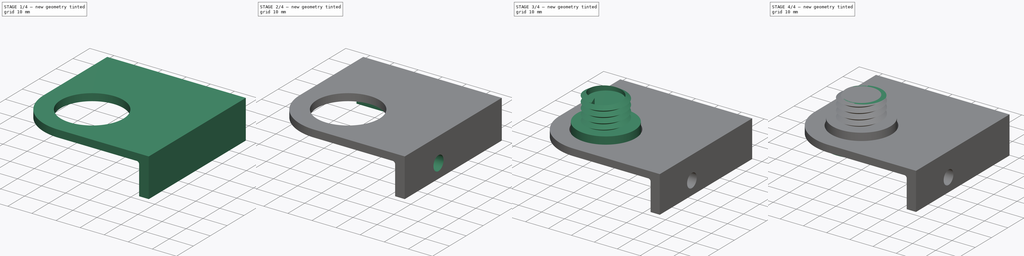
[diagram: build sequence overview — one tinted view per stage of 4, left to right]
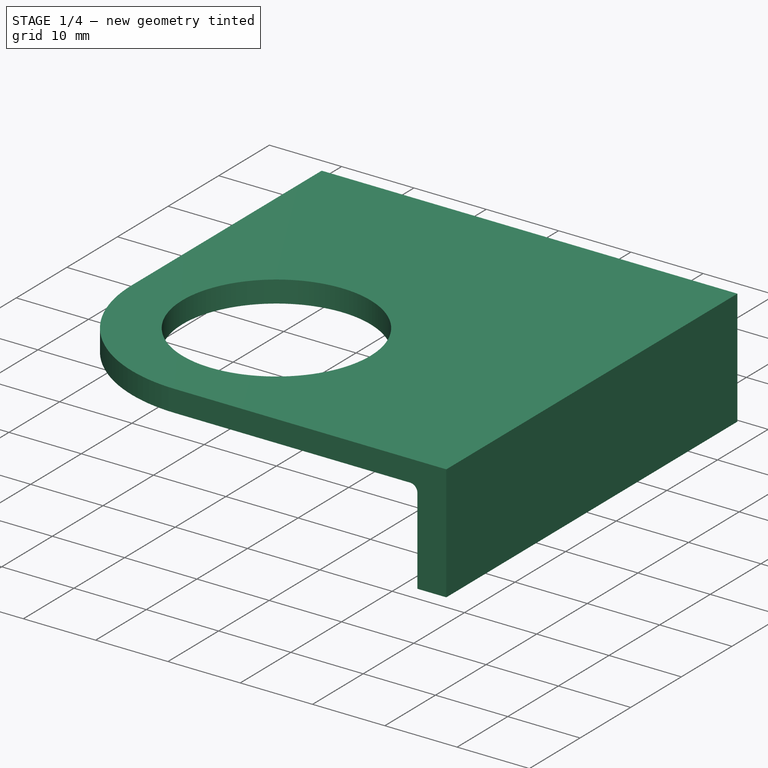
[diagram: stage 1 of 4 — iso view after this stage's code; geometry added in this stage tinted green]
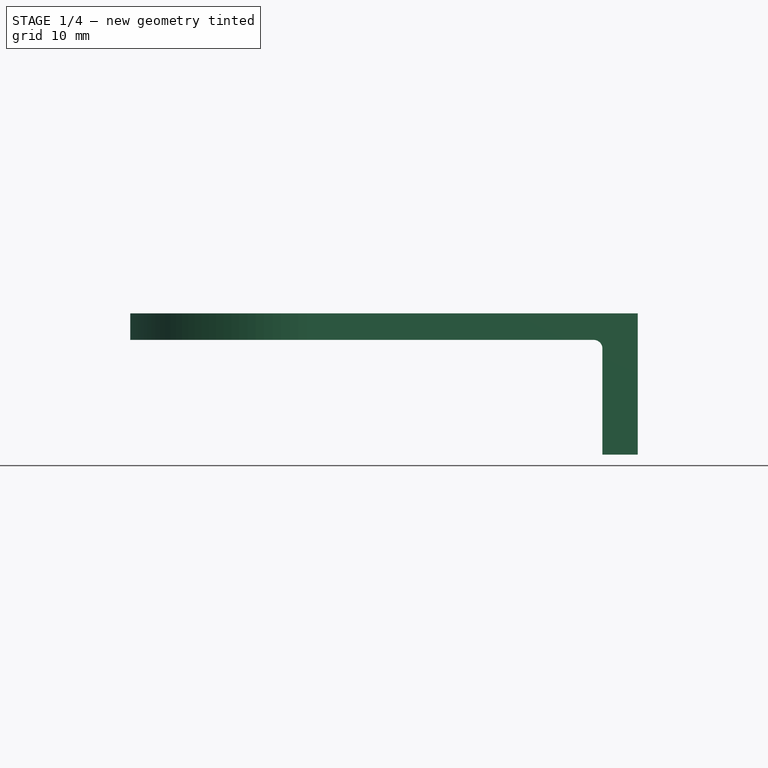
[diagram: stage 1 of 4 — front view after this stage's code; geometry added in this stage tinted green]
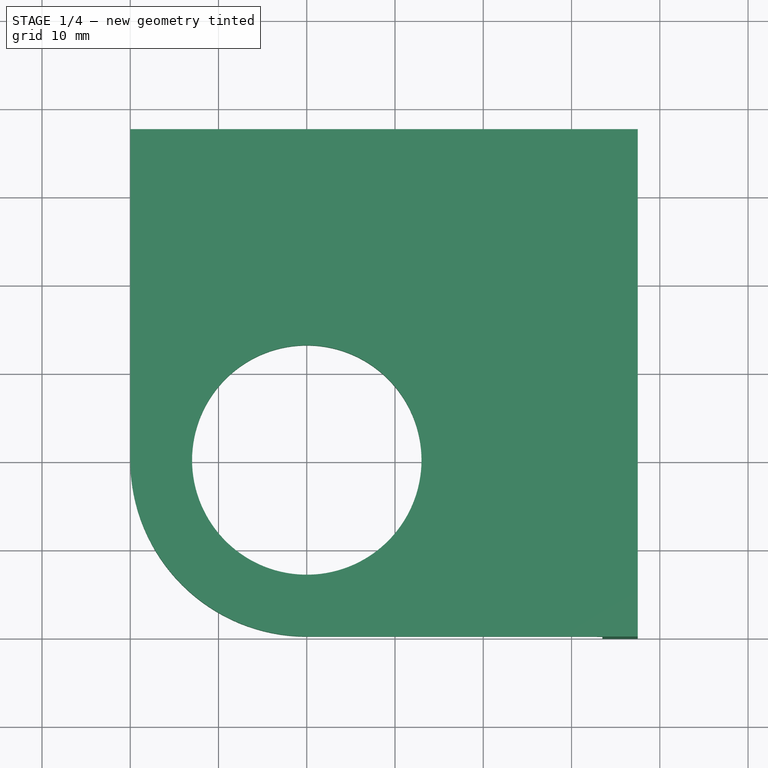
[diagram: stage 1 of 4 — top view after this stage's code; geometry added in this stage tinted green]
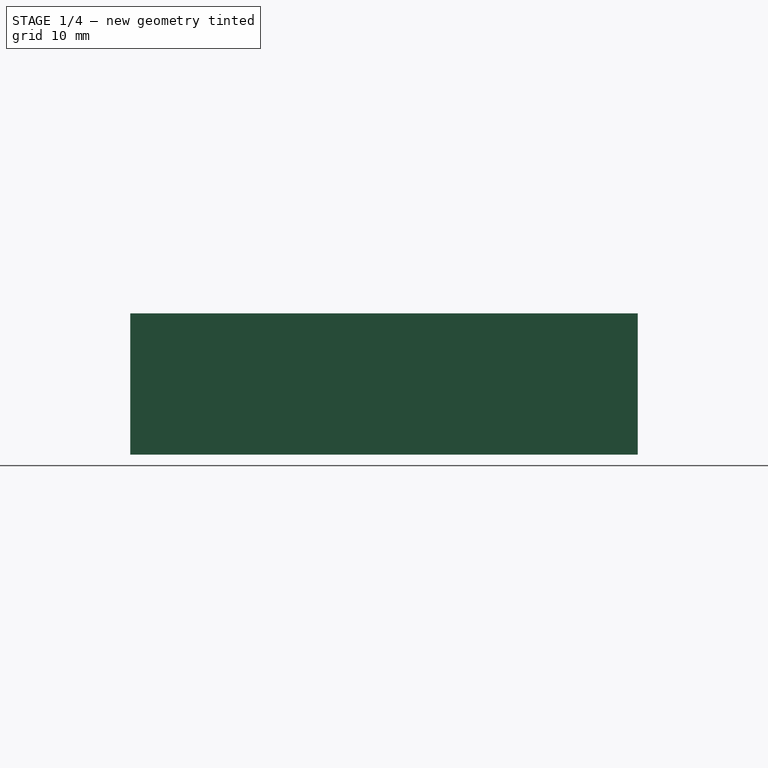
[diagram: stage 1 of 4 — right view after this stage's code; geometry added in this stage tinted green]
FCSTD DOCUMENT  (FreeCAD 0.20R29177 +426 (Git))
Label: tempHighTowerTableWallSecureConnector
License: All rights reserved
LicenseURL: http://en.wikipedia.org/wiki/All_rights_reserved
objects: Sketcher::SketchObject×11, PartDesign::Pad×6, PartDesign::Pocket×3, PartDesign::Body×2, Spreadsheet::Sheet×1, PartDesign::AdditiveHelix×1
note: 33 computed .brp shape members not serialized (recipe doc carries the construction recipe); baked Part::Feature solids carry a one-line shape summary decoded from their .brp

FEATURE [PartDesign::Body] Body
  Group = -> [Sketch,Pad,Sketch001,Pad001,Sketch002,Sketch004,AdditiveHelix001,Sketch005,Pocket001,Sketch006,Pad002]
  Origin = -> Origin
  Tip = -> Pad002
FEATURE [Sketcher::SketchObject] Sketch007
  AttachmentOffset = pos=(0,0,3) rot=(0,0,1;0rad)
  FullyConstrained = true
  MapMode = 5
  Placement = pos=(0,0,3) rot=(0,0,1;0rad)
  Support = -> [XY_Plane001]
  expr: .AttachmentOffset.Base.z = Spreadsheet.topThickness
  expr: Constraints[0] = Spreadsheet.tableConnR + 0.5
  expr: Constraints[19] = Spreadsheet.totalWallConnWidth
  expr: Constraints[3] = Spreadsheet.tableConnRToSideDist
  expr: Constraints[9] = Spreadsheet.totalWallConnWidth
  sketch-geometry (7):
    g0: Circle CenterX=0 CenterY=0 CenterZ=0 NormalX=0 NormalY=0 NormalZ=1 AngleXU=0 Radius=13
    g1: ArcOfCircle CenterX=0 CenterY=0 CenterZ=0 NormalX=0 NormalY=0 NormalZ=1 AngleXU=0 Radius=20 StartAngle=3.14159 EndAngle=4.71239
    g2: LineSegment StartX=0 StartY=37.5 StartZ=0 EndX=37.5 EndY=37.5 EndZ=0
    g3: LineSegment StartX=37.5 StartY=37.5 StartZ=0 EndX=37.5 EndY=-20 EndZ=0
    g4: LineSegment StartX=37.5 StartY=-20 StartZ=0 EndX=-7.1e-15 EndY=-20 EndZ=0
    g5: LineSegment StartX=0 StartY=37.5 StartZ=0 EndX=-20 EndY=37.5 EndZ=0
    g6: LineSegment StartX=-20 StartY=37.5 StartZ=0 EndX=-20 EndY=0 EndZ=0
  constraints (20):
    c: Radius(g0) = 13
    c: Coincident(g0,g-1)
    c: Coincident(g1,g0)
    c: Radius(g1) = 20
    c: Coincident(g2,g3)
    c: Coincident(g3,g4)
    c: Horizontal(g2)
    c: Vertical(g3)
    c: PointOnObject(g2,g-2)
    c: DistanceX(g2,g2) = 37.5
    c: Coincident(g5,g2)
    c: Horizontal(g5)
    c: Coincident(g6,g5)
    c: Vertical(g6)
    c: Horizontal(g4)
    c: Coincident(g4,g1)
    c: Coincident(g1,g6)
    c: PointOnObject(g1,g-2)
    c: PointOnObject(g1,g-1)
    c: DistanceY(g0,g2) = 37.5
FEATURE [PartDesign::Pad] Pad003
  Direction = (0,0,1)
  Length = 3
  Length2 = 10
  Profile = -> Sketch007
  ReferenceAxis = -> Sketch007 [N_Axis]
  Type = 0
  expr: Length = Spreadsheet.tableConnDeepth - Spreadsheet.topThickness
FEATURE [Sketcher::SketchObject] Sketch008  label="Sketch008SideWall"
  AttachmentOffset = pos=(0,0,20) rot=(0,0,1;0rad)
  FullyConstrained = true
  MapMode = 5
  Placement = pos=(0,-20,-4.4e-15) rot=(1,0,0;1.5708rad)
  Support = -> [XZ_Plane001]
  expr: .AttachmentOffset.Base.z = Spreadsheet.tableConnRToSideDist
  expr: Constraints[10] = Spreadsheet.topThickness
  expr: Constraints[14] = Spreadsheet.wallConnectBottomHeight
  expr: Constraints[8] = Spreadsheet.wallConnectThickness
  expr: Constraints[9] = Spreadsheet.totalWallConnWidth
  sketch-geometry (5):
    g0: LineSegment StartX=32.5 StartY=3 StartZ=0 EndX=37.5 EndY=3 EndZ=0
    g1: LineSegment StartX=37.5 StartY=3 StartZ=0 EndX=37.5 EndY=-10 EndZ=0
    g2: LineSegment StartX=37.5 StartY=-10 StartZ=0 EndX=33.5 EndY=-10 EndZ=0
    g3: LineSegment StartX=33.5 StartY=-10 StartZ=0 EndX=33.5 EndY=2 EndZ=0
    g4: ArcOfCircle CenterX=32.5 CenterY=2 CenterZ=0 NormalX=0 NormalY=0 NormalZ=1 AngleXU=0 Radius=1 StartAngle=0 EndAngle=1.5708
  constraints (15):
    c: Horizontal(g0)
    c: Coincident(g1,g0)
    c: Vertical(g1)
    c: Coincident(g2,g1)
    c: Coincident(g3,g2)
    c: Vertical(g3)
    c: Horizontal(g2)
    c: DistanceX(g0,g0) = 5
    c: DistanceX(g2,g2) = 4
    c: DistanceX(g-1,g0) = 37.5
    c: DistanceY(g-1,g0) = 3
    c: Coincident(g4,g0)
    c: Radius(g4) = 1
    c: Tangent(g4,g3) = -1.5708
    c: DistanceY(g2,g-1) = 10
FEATURE [PartDesign::Pad] Pad004  label="Pad004SideWall"
  BaseFeature = -> Pad003
  Direction = (0,-1,-2e-16)
  Length = 57.5
  Length2 = 10
  Profile = -> Sketch008
  ReferenceAxis = -> Sketch008 [N_Axis]
  Reversed = true
  Type = 0
  expr: Length = Spreadsheet.totalWallConnWidthWithR
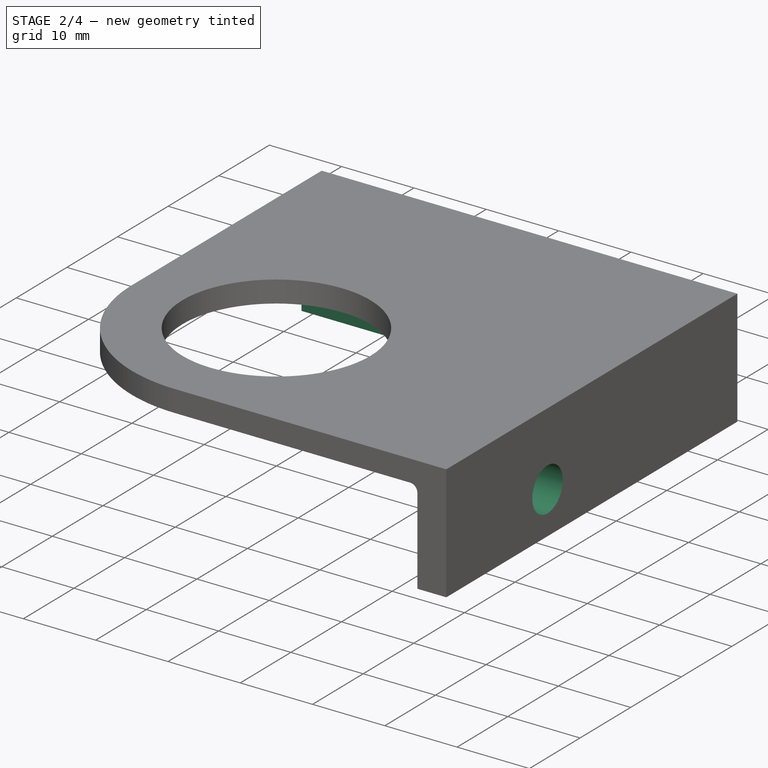
[diagram: stage 2 of 4 — iso view after this stage's code; geometry added in this stage tinted green]
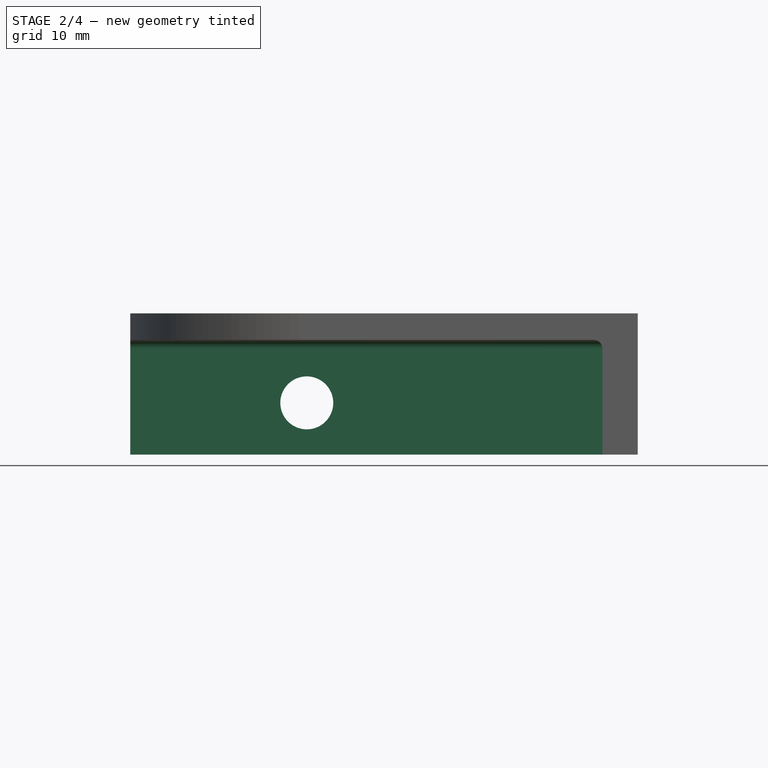
[diagram: stage 2 of 4 — front view after this stage's code; geometry added in this stage tinted green]
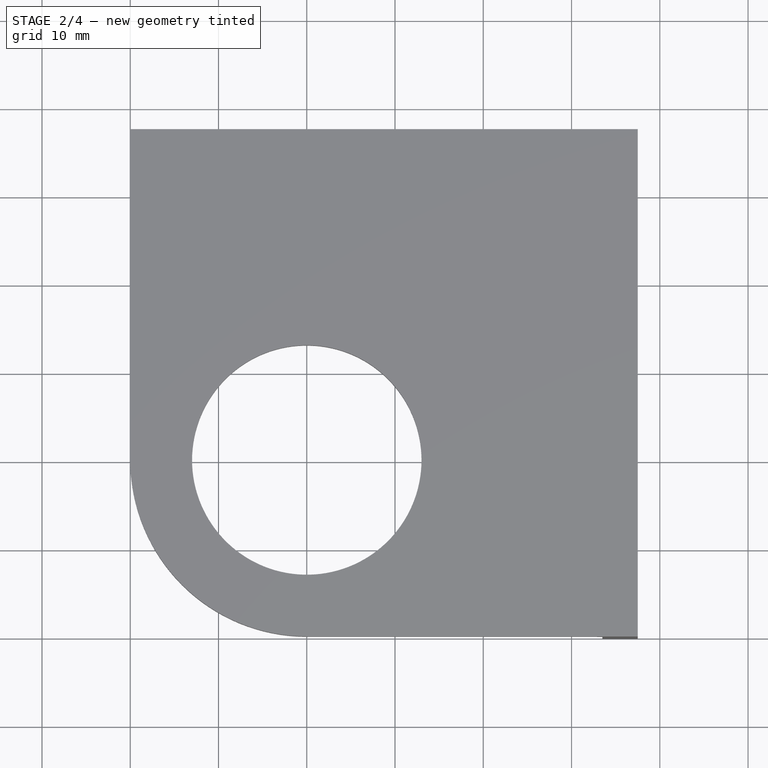
[diagram: stage 2 of 4 — top view after this stage's code; geometry added in this stage tinted green]
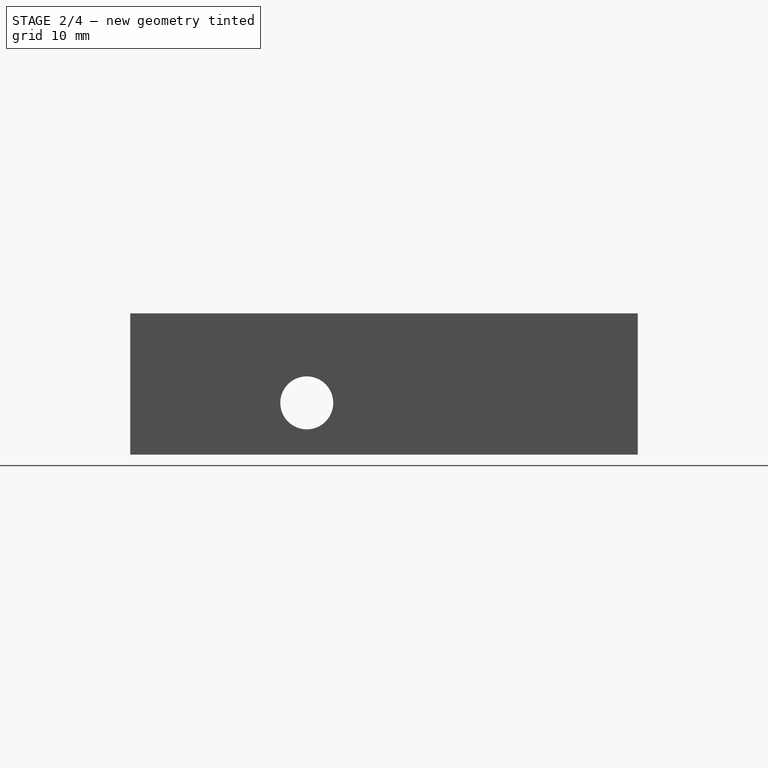
[diagram: stage 2 of 4 — right view after this stage's code; geometry added in this stage tinted green]
FEATURE [Sketcher::SketchObject] Sketch009  label="Sketch009SideWall"
  AttachmentOffset = pos=(0,0,-20) rot=(0,0,1;0rad)
  FullyConstrained = true
  MapMode = 5
  Placement = pos=(-20,4.4e-15,-4.4e-15) rot=(0.57735,0.57735,0.57735;2.0944rad)
  Support = -> [YZ_Plane001]
  expr: .AttachmentOffset.Base.z = -Spreadsheet.tableConnRToSideDist
  expr: Constraints[10] = Spreadsheet.topThickness
  expr: Constraints[14] = Spreadsheet.wallConnectBottomHeight
  expr: Constraints[8] = Spreadsheet.wallConnectThickness
  expr: Constraints[9] = Spreadsheet.totalWallConnWidth
  sketch-geometry (5):
    g0: LineSegment StartX=32.5 StartY=3 StartZ=0 EndX=37.5 EndY=3 EndZ=0
    g1: LineSegment StartX=37.5 StartY=3 StartZ=0 EndX=37.5 EndY=-10 EndZ=0
    g2: LineSegment StartX=37.5 StartY=-10 StartZ=0 EndX=33.5 EndY=-10 EndZ=0
    g3: LineSegment StartX=33.5 StartY=-10 StartZ=0 EndX=33.5 EndY=2 EndZ=0
    g4: ArcOfCircle CenterX=32.5 CenterY=2 CenterZ=0 NormalX=0 NormalY=0 NormalZ=1 AngleXU=0 Radius=1 StartAngle=0 EndAngle=1.5708
  constraints (15):
    c: Horizontal(g0)
    c: Coincident(g1,g0)
    c: Vertical(g1)
    c: Coincident(g2,g1)
    c: Coincident(g3,g2)
    c: Vertical(g3)
    c: Horizontal(g2)
    c: DistanceX(g0,g0) = 5
    c: DistanceX(g2,g2) = 4
    c: DistanceX(g-1,g0) = 37.5
    c: DistanceY(g-1,g0) = 3
    c: Coincident(g4,g0)
    c: Radius(g4) = 1
    c: Tangent(g4,g3) = -1.5708
    c: DistanceY(g2,g-1) = 10
FEATURE [PartDesign::Pad] Pad005
  BaseFeature = -> Pad004
  Direction = (1,-2e-16,3e-16)
  Length = 57.5
  Length2 = 10
  Profile = -> Sketch009
  ReferenceAxis = -> Sketch009 [N_Axis]
  Type = 0
  expr: Length = Spreadsheet.totalWallConnWidthWithR
FEATURE [Sketcher::SketchObject] Sketch010
  FullyConstrained = false
  MapMode = 5
  Placement = pos=(0,0,0) rot=(0.57735,0.57735,0.57735;2.0944rad)
  Support = -> [YZ_Plane001]
  expr: Constraints[1] = Spreadsheet.woodScrewR
  sketch-geometry (1):
    g0: Circle CenterX=0 CenterY=-4.13761 CenterZ=0 NormalX=0 NormalY=0 NormalZ=1 AngleXU=0 Radius=3
  constraints (2):
    c: PointOnObject(g0,g-2)
    c: Radius(g0) = 3
FEATURE [PartDesign::Pocket] Pocket002
  BaseFeature = -> Pad005
  Direction = (-1,2e-16,-3e-16)
  Length = 5
  Length2 = 5
  Profile = -> Sketch010
  ReferenceAxis = -> Sketch010 [N_Axis]
  Reversed = true
  Type = 1
FEATURE [Sketcher::SketchObject] Sketch011
  FullyConstrained = false
  MapMode = 5
  Placement = pos=(0,0,0) rot=(1,0,0;1.5708rad)
  Support = -> [XZ_Plane001]
  expr: Constraints[1] = Spreadsheet.woodScrewR
  sketch-geometry (1):
    g0: Circle CenterX=0 CenterY=-4.13761 CenterZ=0 NormalX=0 NormalY=0 NormalZ=1 AngleXU=0 Radius=3
  constraints (2):
    c: PointOnObject(g0,g-2)
    c: Radius(g0) = 3
FEATURE [PartDesign::Pocket] Pocket003
  BaseFeature = -> Pocket002
  Direction = (0,1,2e-16)
  Length = 5
  Length2 = 5
  Profile = -> Sketch011
  ReferenceAxis = -> Sketch011 [N_Axis]
  Type = 1
FEATURE [PartDesign::Body] Body001
  Group = -> [Sketch007,Pad003,Sketch008,Pad004,Sketch009,Pad005,Sketch010,Pocket002,Sketch011,Pocket003]
  Origin = -> Origin001
  Placement = pos=(4,0,0) rot=(0,0,1;0rad)
  Tip = -> Pocket003
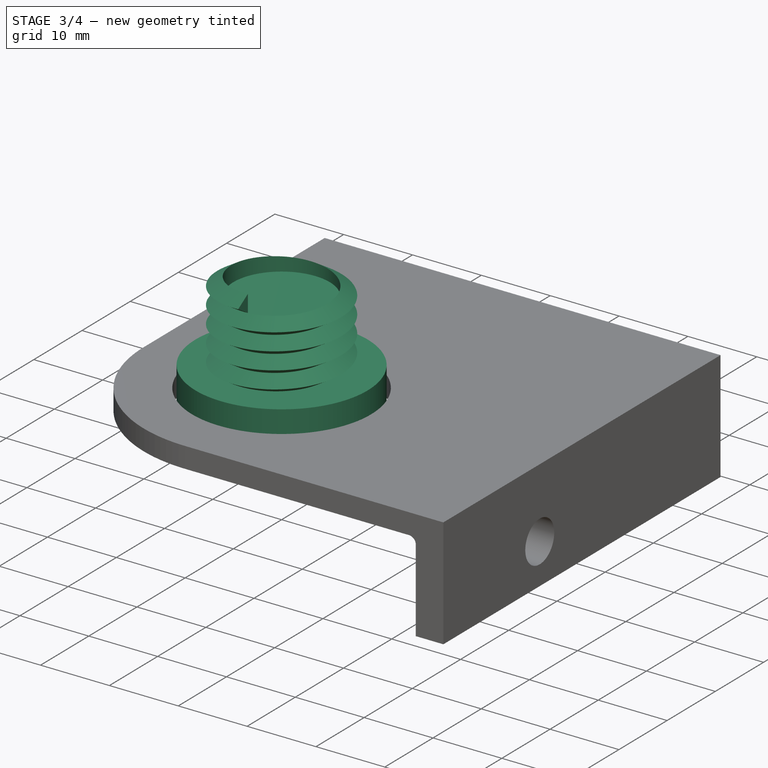
[diagram: stage 3 of 4 — iso view after this stage's code; geometry added in this stage tinted green]
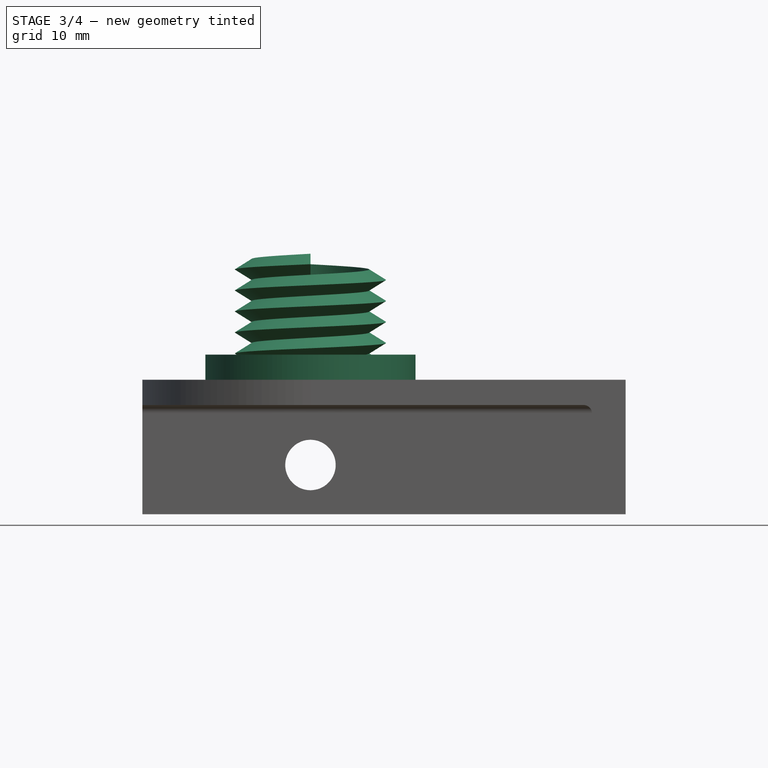
[diagram: stage 3 of 4 — front view after this stage's code; geometry added in this stage tinted green]
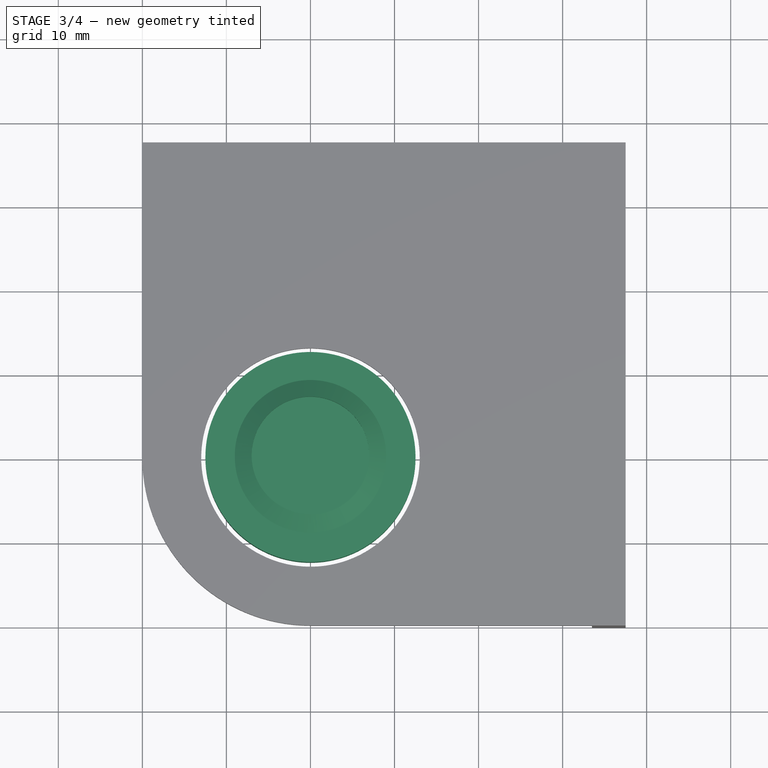
[diagram: stage 3 of 4 — top view after this stage's code; geometry added in this stage tinted green]
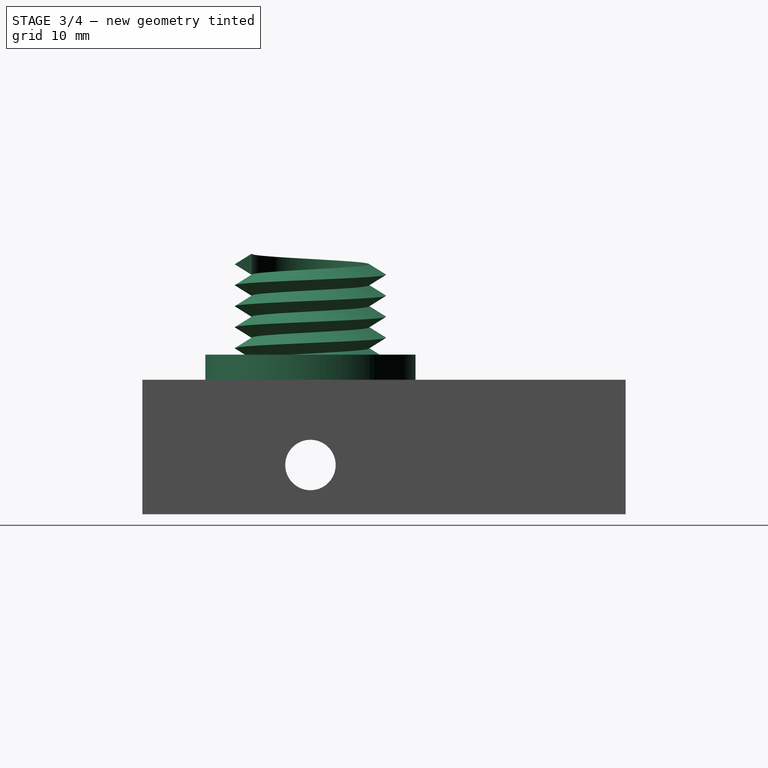
[diagram: stage 3 of 4 — right view after this stage's code; geometry added in this stage tinted green]
FEATURE [Spreadsheet::Sheet] Spreadsheet
  cells = A2=innerScrewR; B2(innerScrewR)=7; A3=tableConnR; B3(tableConnR)=12.5; A4=tableConnDeepth; B4(tableConnDeepth)==3 + wallConnectorPlateTopThickness; A5=screwDeepth; B5(screwDeepth)==tableConnDeepth + 9; A6=wallConnectorPlateTopThickness; B6(wallConnectorPlateTopThickness)=3; A7=topR; B7(topR)=15; A8=topThickness; B8(topThickness)=3; A11=screwToothBaseW; B11(screwToothBaseW)=2.5; A12=screwToothActualBaseW; B12(screwToothActualBaseW)==screwToothBaseW - screwToothShrink; A13=screwToothShrink; B13(screwToothShrink)=0.01; A17=tableConnRToSideDist; B17(tableConnRToSideDist)=20; A18=centerToSideDist; B18(centerToSideDist)==tableConnRToSideDist + tableConnR; A21=holderOutsideR; B21(holderOutsideR)==tableConnR + 4; A26=wallConnectThickness; B26(wallConnectThickness)=4; A27=wallConnectBottomHeight; B27(wallConnectBottomHeight)=10; A28=totalWallConnWidth; B28(totalWallConnWidth)==tableConnR + tableConnRToSideDist + wallConnectThickness + 1; A29=totalWallConnWidthWithR; B29(totalWallConnWidthWithR)==totalWallConnWidth + tableConnRToSideDist; A31=woodScrewR; B31(woodScrewR)=3
FEATURE [Sketcher::SketchObject] Sketch
  AttachmentOffset = pos=(0,0,3) rot=(0,0,1;0rad)
  FullyConstrained = true
  MapMode = 5
  Placement = pos=(0,0,3) rot=(0,0,1;0rad)
  Support = -> [XY_Plane]
  expr: .AttachmentOffset.Base.z = Spreadsheet.topThickness
  expr: Constraints[1] = Spreadsheet.tableConnR
  sketch-geometry (1):
    g0: Circle CenterX=0 CenterY=0 CenterZ=0 NormalX=0 NormalY=0 NormalZ=1 AngleXU=0 Radius=12.5
  constraints (2):
    c: Coincident(g0,g-1)
    c: Radius(g0) = 12.5
FEATURE [PartDesign::Pad] Pad
  Direction = (0,0,1)
  Length = 6
  Length2 = 10
  Profile = -> Sketch
  ReferenceAxis = -> Sketch [N_Axis]
  Type = 0
  expr: Length = Spreadsheet.tableConnDeepth
FEATURE [Sketcher::SketchObject] Sketch001  label="Sketch001CenterScrew"
  AttachmentOffset = pos=(0,0,3) rot=(0,0,1;0rad)
  FullyConstrained = true
  MapMode = 5
  Placement = pos=(0,0,3) rot=(0,0,1;0rad)
  Support = -> [XY_Plane]
  expr: .AttachmentOffset.Base.z = Spreadsheet.topThickness
  expr: Constraints[1] = Spreadsheet.innerScrewR
  sketch-geometry (1):
    g0: Circle CenterX=0 CenterY=0 CenterZ=0 NormalX=0 NormalY=0 NormalZ=1 AngleXU=0 Radius=7
  constraints (2):
    c: Coincident(g0,g-1)
    c: Radius(g0) = 7
FEATURE [PartDesign::Pad] Pad001
  BaseFeature = -> Pad
  Direction = (0,0,1)
  Length = 15
  Length2 = 10
  Profile = -> Sketch001
  ReferenceAxis = -> Sketch001 [N_Axis]
  Type = 0
  expr: Length = Spreadsheet.screwDeepth
FEATURE [Sketcher::SketchObject] Sketch002  label="Sketch002TimeSaveDebugCut"
  FullyConstrained = false
  MapMode = 5
  Support = -> [XY_Plane]
  sketch-geometry (9):
    g0: LineSegment StartX=-9.58047 StartY=5.6087 StartZ=0 EndX=-7.58912 EndY=5.6087 EndZ=0
    g1: LineSegment StartX=-7.58912 StartY=5.6087 StartZ=0 EndX=-7.58912 EndY=-5.46904 EndZ=0
    g2: LineSegment StartX=-7.58912 StartY=-5.46904 StartZ=0 EndX=-9.58047 EndY=-5.46904 EndZ=0
    g3: LineSegment StartX=-9.58047 StartY=-5.46904 StartZ=0 EndX=-9.58047 EndY=5.6087 EndZ=0
    g4: LineSegment StartX=7.61015 StartY=5.53512 StartZ=0 EndX=9.59473 EndY=5.53512 EndZ=0
    g5: LineSegment StartX=9.59473 StartY=5.53512 StartZ=0 EndX=9.59473 EndY=-4.89399 EndZ=0
    g6: LineSegment StartX=9.59473 StartY=-4.89399 StartZ=0 EndX=7.61015 EndY=-4.89399 EndZ=0
    g7: LineSegment StartX=7.61015 StartY=-4.89399 StartZ=0 EndX=7.61015 EndY=5.53512 EndZ=0
    g8: Circle CenterX=0 CenterY=0 CenterZ=0 NormalX=0 NormalY=0 NormalZ=1 AngleXU=0 Radius=5.12394
  constraints (17):
    c: Coincident(g0,g1)
    c: Coincident(g1,g2)
    c: Coincident(g2,g3)
    c: Coincident(g3,g0)
    c: Horizontal(g0)
    c: Horizontal(g2)
    c: Vertical(g1)
    c: Vertical(g3)
    c: Coincident(g4,g5)
    c: Coincident(g5,g6)
    c: Coincident(g6,g7)
    c: Coincident(g7,g4)
    c: Horizontal(g4)
    c: Horizontal(g6)
    c: Vertical(g5)
    c: Vertical(g7)
    c: Coincident(g8,g-1)
FEATURE [Sketcher::SketchObject] Sketch004
  FullyConstrained = true
  MapMode = 5
  Placement = pos=(0,0,0) rot=(0.57735,0.57735,0.57735;2.0944rad)
  Support = -> [YZ_Plane]
  expr: Constraints[3] = Spreadsheet.screwToothActualBaseW
  expr: Constraints[4] = Spreadsheet.screwToothActualBaseW / 2
  expr: Constraints[5] = 2
  expr: Constraints[7] = Spreadsheet.innerScrewR
  expr: Constraints[8] = Spreadsheet.tableConnDeepth
  sketch-geometry (3):
    g0: LineSegment StartX=-7 StartY=3.51 StartZ=0 EndX=-9 EndY=4.755 EndZ=0
    g1: LineSegment StartX=-9 StartY=4.755 StartZ=0 EndX=-7 EndY=6 EndZ=0
    g2: LineSegment StartX=-7 StartY=6 StartZ=0 EndX=-7 EndY=3.51 EndZ=0
  constraints (9):
    c: Coincident(g1,g0)
    c: Coincident(g2,g1)
    c: Coincident(g2,g0)
    c: DistanceY(g2,g2) = 2.49
    c: DistanceY(g0,g0) = 1.245
    c: DistanceX(g0,g0) = 2
    c: Vertical(g2)
    c: DistanceX(g0,g-1) = 7
    c: DistanceY(g-1,g1) = 6
FEATURE [PartDesign::AdditiveHelix] AdditiveHelix001
  Angle = 0
  Axis = (-2e-16,3e-16,1)
  Base = (0,0,0)
  BaseFeature = -> Pad001
  Growth = 0
  HasBeenEdited = true
  Height = 15
  LeftHanded = false
  Mode = 0
  Outside = false
  Pitch = 2.5
  Profile = -> Sketch004
  ReferenceAxis = -> Sketch004 [V_Axis]
  Turns = 6
  expr: Height = Spreadsheet.screwDeepth
  expr: Pitch = Spreadsheet.screwToothBaseW
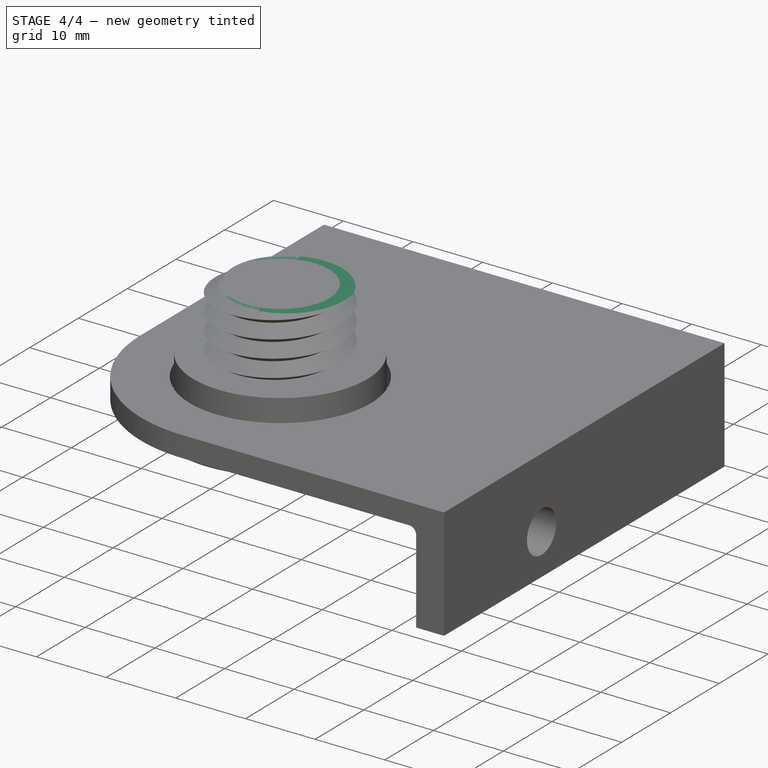
[diagram: stage 4 of 4 — iso view after this stage's code; geometry added in this stage tinted green]
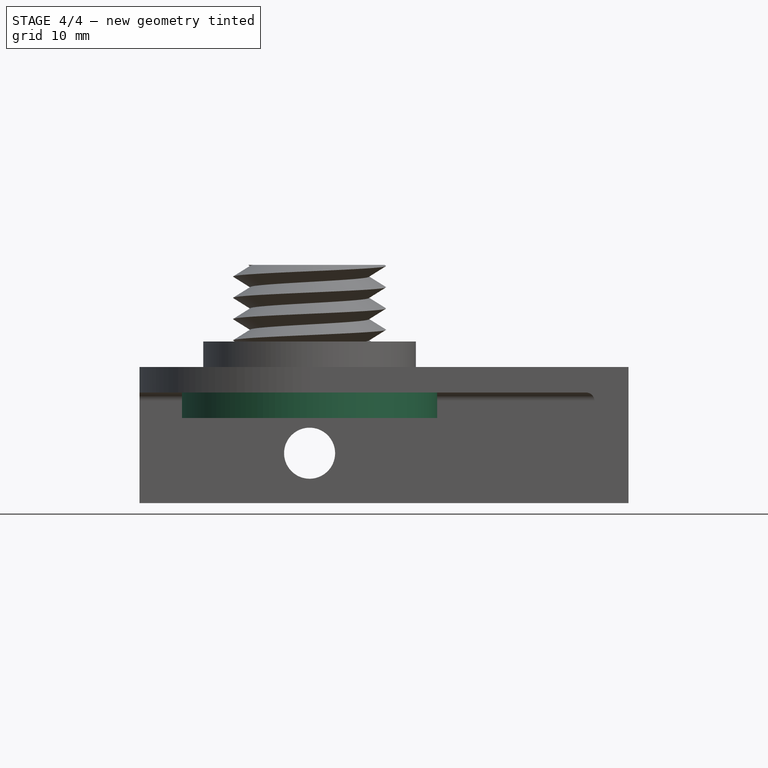
[diagram: stage 4 of 4 — front view after this stage's code; geometry added in this stage tinted green]
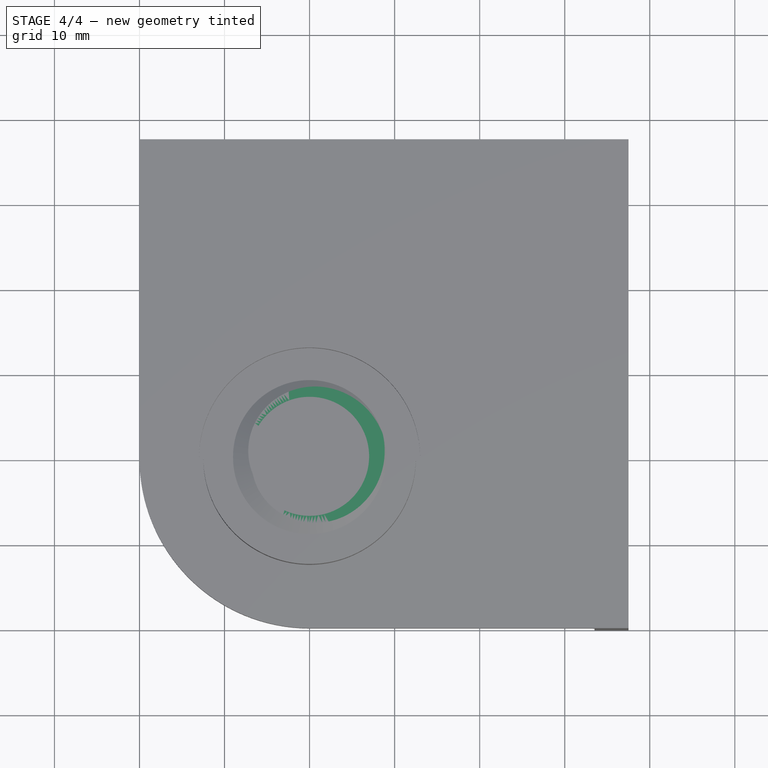
[diagram: stage 4 of 4 — top view after this stage's code; geometry added in this stage tinted green]
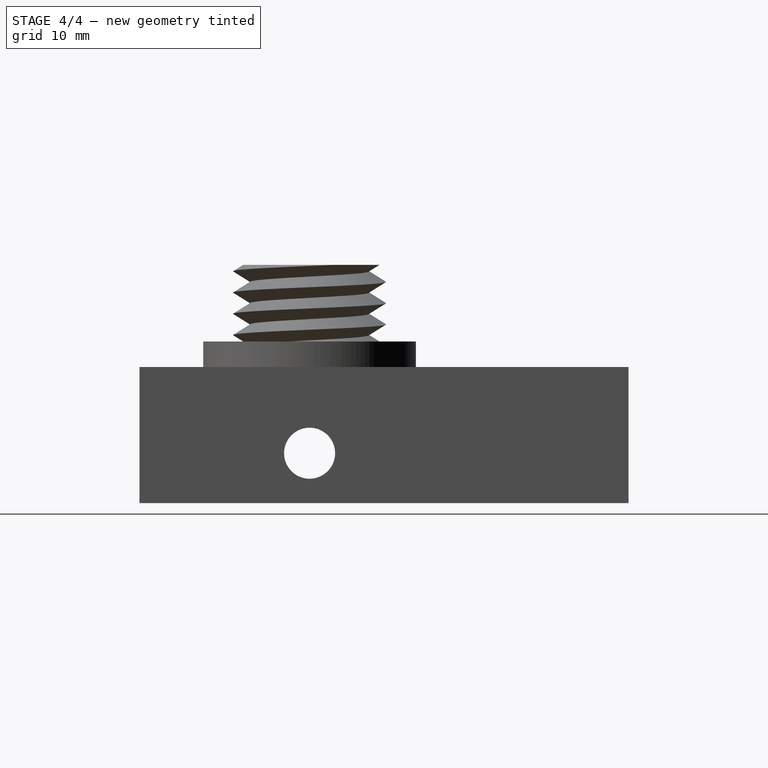
[diagram: stage 4 of 4 — right view after this stage's code; geometry added in this stage tinted green]
FEATURE [Sketcher::SketchObject] Sketch005
  AttachmentOffset = pos=(0,0,10) rot=(0,0,1;0rad)
  FullyConstrained = false
  MapMode = 5
  Placement = pos=(0,-10,-2.2e-15) rot=(1,0,0;1.5708rad)
  Support = -> [XZ_Plane]
  expr: Constraints[8] = Spreadsheet.screwDeepth + Spreadsheet.topThickness
  sketch-geometry (4):
    g0: LineSegment StartX=-20.8182 StartY=24.5816 StartZ=0 EndX=22.9001 EndY=24.5816 EndZ=0
    g1: LineSegment StartX=22.9001 StartY=24.5816 StartZ=0 EndX=22.9001 EndY=18 EndZ=0
    g2: LineSegment StartX=22.9001 StartY=18 StartZ=0 EndX=-20.8182 EndY=18 EndZ=0
    g3: LineSegment StartX=-20.8182 StartY=18 StartZ=0 EndX=-20.8182 EndY=24.5816 EndZ=0
  constraints (9):
    c: Coincident(g0,g1)
    c: Coincident(g1,g2)
    c: Coincident(g2,g3)
    c: Coincident(g3,g0)
    c: Horizontal(g0)
    c: Horizontal(g2)
    c: Vertical(g1)
    c: Vertical(g3)
    c: DistanceY(g-1,g1) = 18
FEATURE [PartDesign::Pocket] Pocket001  label="Pocket001TopCut"
  BaseFeature = -> AdditiveHelix001
  Direction = (0,1,2e-16)
  Length = 20
  Length2 = 5
  Profile = -> Sketch005
  ReferenceAxis = -> Sketch005 [N_Axis]
  Type = 0
FEATURE [Sketcher::SketchObject] Sketch006  label="Sketch006TopPlate"
  FullyConstrained = true
  MapMode = 5
  Support = -> [XY_Plane]
  expr: Constraints[1] = Spreadsheet.topR
  sketch-geometry (1):
    g0: Circle CenterX=0 CenterY=0 CenterZ=0 NormalX=0 NormalY=0 NormalZ=1 AngleXU=0 Radius=15
  constraints (2):
    c: Coincident(g0,g-1)
    c: Radius(g0) = 15
FEATURE [PartDesign::Pad] Pad002  label="Pad002Top"
  BaseFeature = -> Pocket001
  Direction = (0,0,1)
  Length = 3
  Length2 = 10
  Profile = -> Sketch006
  ReferenceAxis = -> Sketch006 [N_Axis]
  Type = 0
  expr: Length = Spreadsheet.topThickness
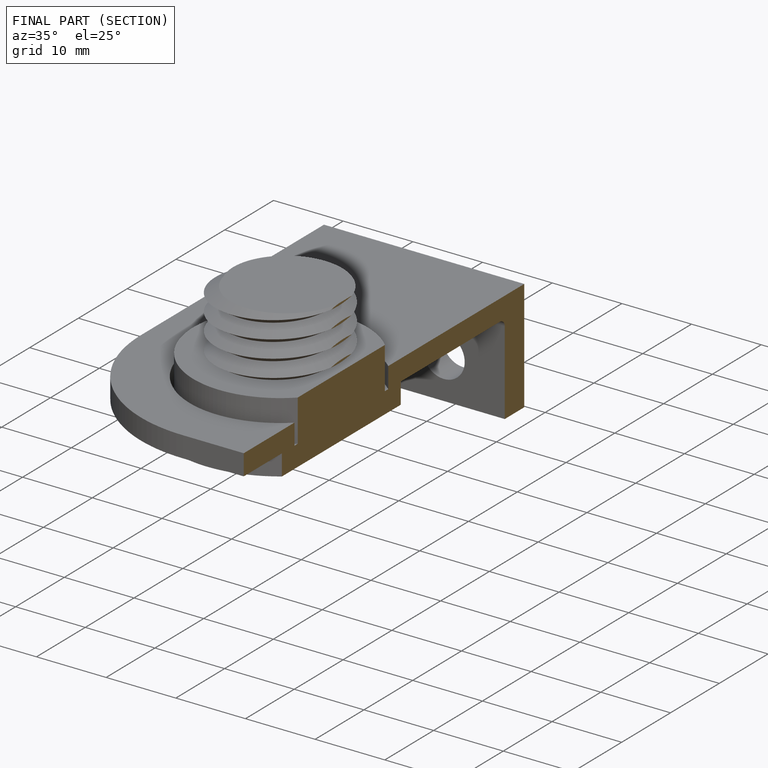
[diagram: finished part — half-section view (interior)]
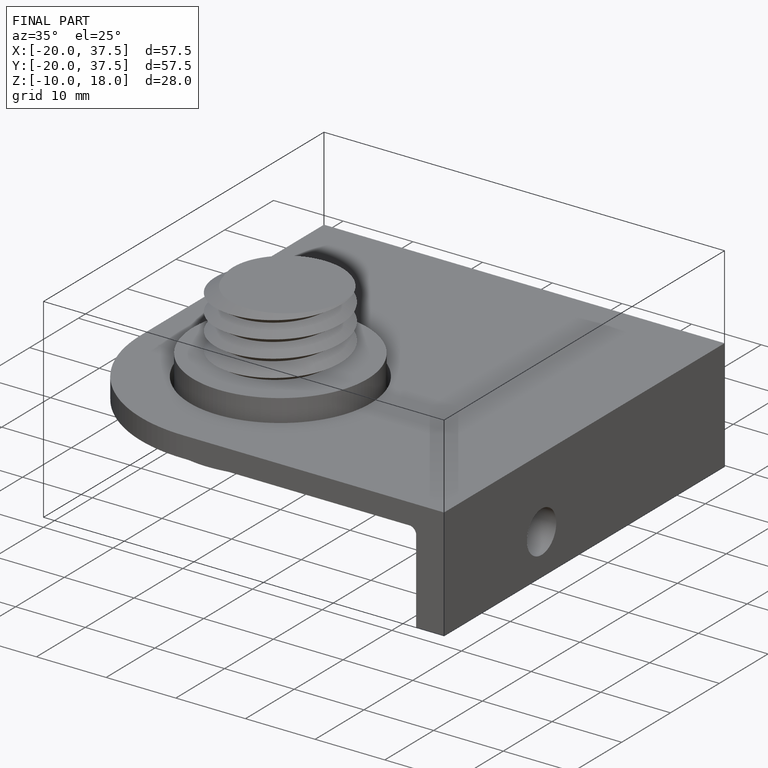
[diagram: finished part — iso view with bounding-box wireframe]
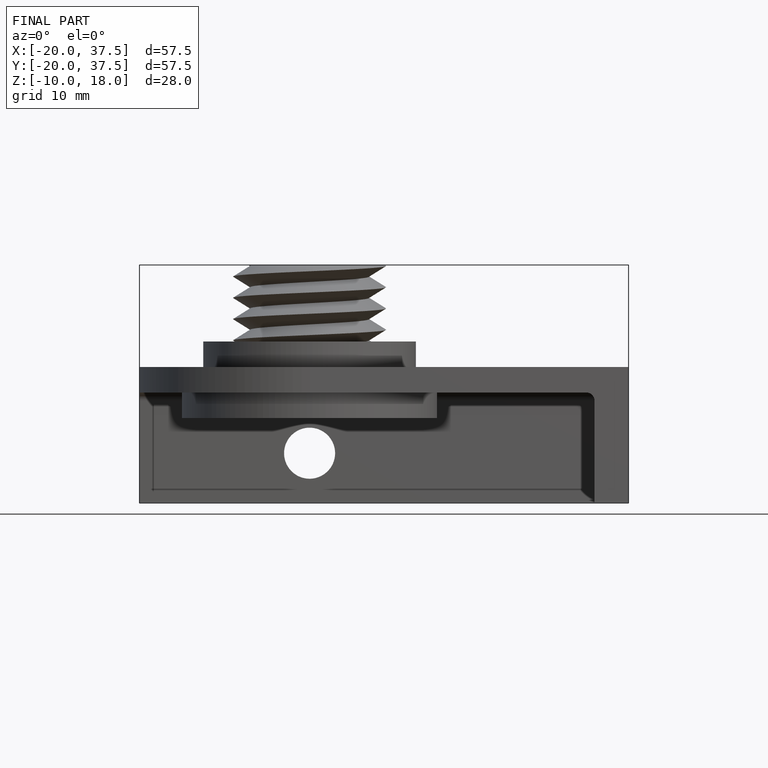
[diagram: finished part — front view with bounding-box wireframe]
